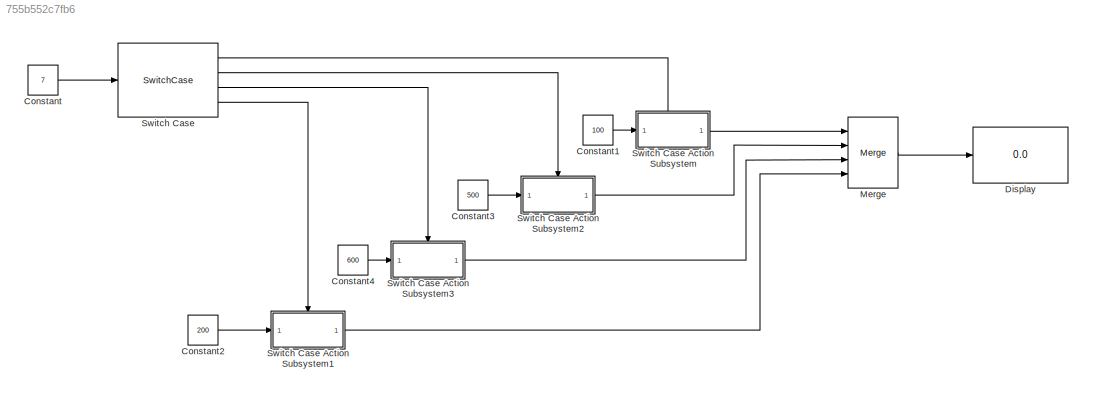
MODEL slx_755b552c7fb6
KIND model
CONFIG AbsTol = auto
CONFIG EnableMultiTasking = off
CONFIG FixedStep = auto
CONFIG MaxStep = auto
CONFIG MinStep = auto
CONFIG RelTol = 1e-3
CONFIG SampleTimeConstraint = Unconstrained
CONFIG SolverName = VariableStepAuto
CONFIG StartTime = 0.0
CONFIG StopTime = 10.0
BLOCK [Constant] Constant
  Value = 7
BLOCK [Constant] Constant1
  Value = 100
BLOCK [Constant] Constant2
  Value = 200
BLOCK [Constant] Constant3
  Value = 500
BLOCK [Constant] Constant4
  Value = 600
BLOCK [Display] Display
  Decimation = 1
  Ports = [1]
BLOCK [Merge] Merge
  Inputs = 4
  Ports = [4, 1]
BLOCK [SwitchCase] Switch Case
  CaseConditions = {1,2,[4 5]}
  Ports = [1, 4]
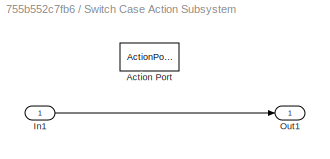
BLOCK [SubSystem] Switch Case Action Subsystem
  Ports = [1, 1, 0, 0, 0, 0, 0, 1]
  RequestExecContextInheritance = off
  TreatAsAtomicUnit = on
BLOCK [ActionPort] Switch Case Action Subsystem/Action Port
  ActionPortLabel = case [ 1 ]:
BLOCK [Inport] Switch Case Action Subsystem/In1
BLOCK [Outport] Switch Case Action Subsystem/Out1
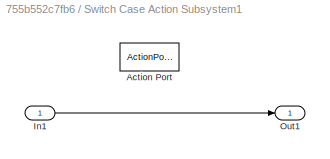
BLOCK [SubSystem] Switch Case Action Subsystem1
  Ports = [1, 1, 0, 0, 0, 0, 0, 1]
  RequestExecContextInheritance = off
  TreatAsAtomicUnit = on
BLOCK [ActionPort] Switch Case Action Subsystem1/Action Port
  ActionPortLabel = default:
BLOCK [Inport] Switch Case Action Subsystem1/In1
BLOCK [Outport] Switch Case Action Subsystem1/Out1
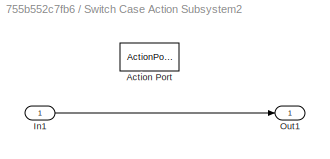
BLOCK [SubSystem] Switch Case Action Subsystem2
  Ports = [1, 1, 0, 0, 0, 0, 0, 1]
  RequestExecContextInheritance = off
  TreatAsAtomicUnit = on
BLOCK [ActionPort] Switch Case Action Subsystem2/Action Port
  ActionPortLabel = case [ 2 ]:
BLOCK [Inport] Switch Case Action Subsystem2/In1
BLOCK [Outport] Switch Case Action Subsystem2/Out1
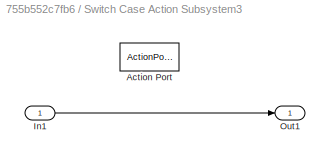
BLOCK [SubSystem] Switch Case Action Subsystem3
  Ports = [1, 1, 0, 0, 0, 0, 0, 1]
  RequestExecContextInheritance = off
  TreatAsAtomicUnit = on
BLOCK [ActionPort] Switch Case Action Subsystem3/Action Port
  ActionPortLabel = case [ 4 5 ]:
BLOCK [Inport] Switch Case Action Subsystem3/In1
BLOCK [Outport] Switch Case Action Subsystem3/Out1
LINE Constant1:1 -> Switch Case Action Subsystem:1
LINE Constant2:1 -> Switch Case Action Subsystem1:1
LINE Constant3:1 -> Switch Case Action Subsystem2:1
LINE Constant4:1 -> Switch Case Action Subsystem3:1
LINE Constant:1 -> Switch Case:1
LINE Merge:1 -> Display:1
LINE Switch Case Action Subsystem/In1:1 -> Switch Case Action Subsystem/Out1:1
LINE Switch Case Action Subsystem1/In1:1 -> Switch Case Action Subsystem1/Out1:1
LINE Switch Case Action Subsystem1:1 -> Merge:4
LINE Switch Case Action Subsystem2/In1:1 -> Switch Case Action Subsystem2/Out1:1
LINE Switch Case Action Subsystem2:1 -> Merge:2
LINE Switch Case Action Subsystem3/In1:1 -> Switch Case Action Subsystem3/Out1:1
LINE Switch Case Action Subsystem3:1 -> Merge:3
LINE Switch Case Action Subsystem:1 -> Merge:1
LINE Switch Case:1 -> Switch Case Action Subsystem:ifaction
LINE Switch Case:2 -> Switch Case Action Subsystem2:ifaction
LINE Switch Case:3 -> Switch Case Action Subsystem3:ifaction
LINE Switch Case:4 -> Switch Case Action Subsystem1:ifaction
